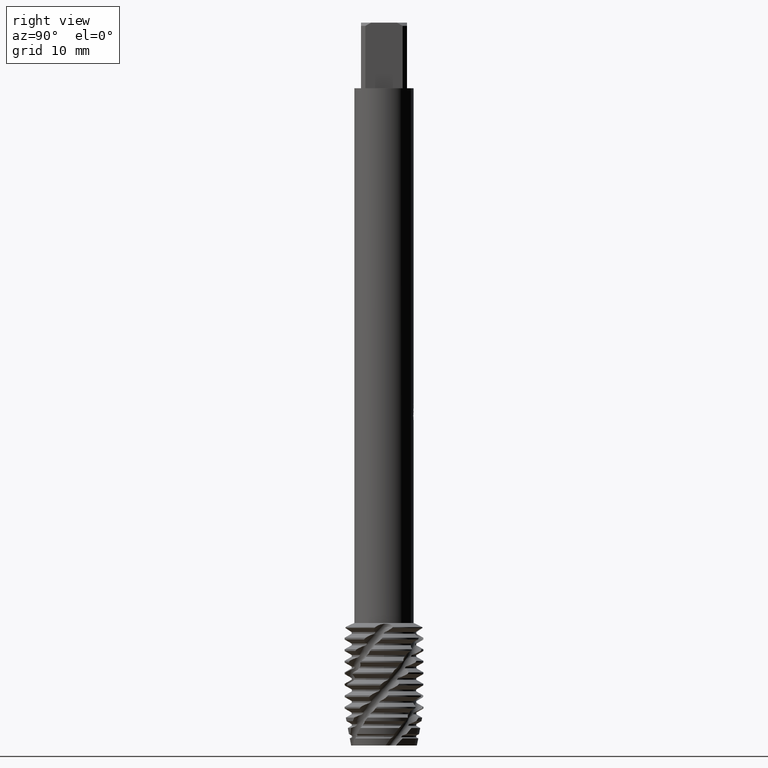
[diagram: clean part render]
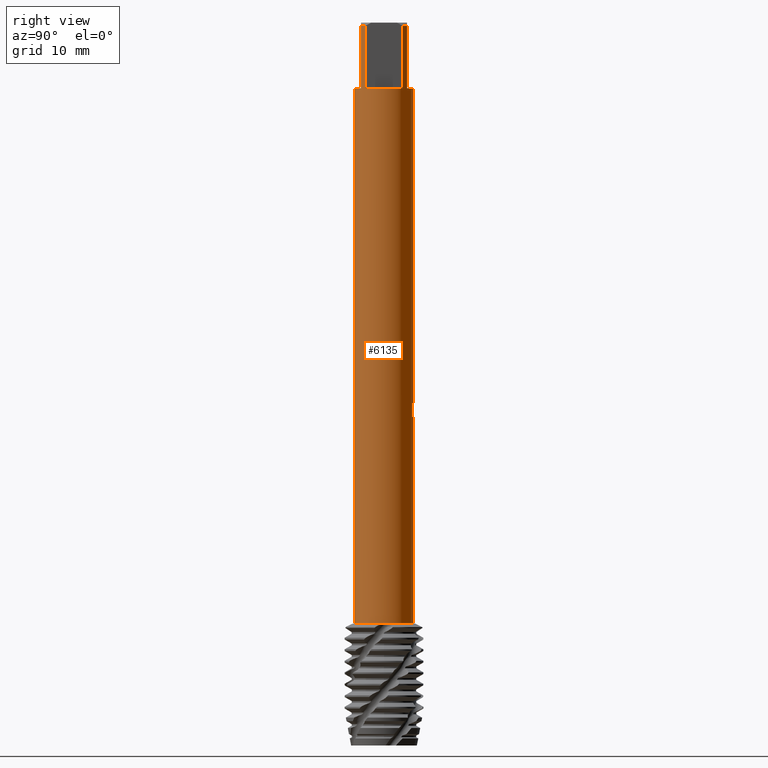
[diagram: same view with one face highlighted and labeled with its STEP entity id]
A machine part, right view. The second image highlights one B-rep face of the part: STEP entity #6135.
In plain terms, the highlighted cylindrical surface (edge-blend (fillet) strip) has radius 4.5 mm, axis along (-0, -0, 1).
Its self-contained STEP definition (entity closure, byte-faithful):
#2151=VERTEX_POINT('',#6357);
#2379=EDGE_CURVE('',#4699,#2591,#6610,.T.);
#2439=VERTEX_POINT('',#6676);
#2591=VERTEX_POINT('',#6840);
#2733=VERTEX_POINT('',#6996);
#2775=VERTEX_POINT('',#7040);
#2905=VERTEX_POINT('',#7178);
#2925=EDGE_CURVE('',#3673,#4673,#7199,.T.);
#3027=EDGE_CURVE('',#5667,#3673,#7308,.T.);
#3035=VERTEX_POINT('',#7316);
#3215=EDGE_CURVE('',#4673,#5623,#7515,.T.);
#3221=EDGE_CURVE('',#3825,#2439,#7521,.T.);
#3591=EDGE_CURVE('',#5341,#3875,#7917,.T.);
#3673=VERTEX_POINT('',#8007);
#3809=VERTEX_POINT('',#8159);
#3825=VERTEX_POINT('',#8175);
#3875=VERTEX_POINT('',#8230);
#3959=EDGE_CURVE('',#2733,#5743,#8324,.T.);
#4145=EDGE_CURVE('',#5259,#2151,#8522,.T.);
#4323=EDGE_CURVE('',#5623,#4775,#8720,.T.);
#4331=EDGE_CURVE('',#5259,#3825,#8728,.T.);
#4359=EDGE_CURVE('',#2439,#5519,#8758,.T.);
#4569=EDGE_CURVE('',#5743,#2905,#8991,.T.);
#4647=EDGE_CURVE('',#2151,#4699,#9081,.T.);
#4673=VERTEX_POINT('',#9107);
#4699=VERTEX_POINT('',#9135);
#4733=EDGE_CURVE('',#3875,#2591,#9175,.T.);
#4755=EDGE_CURVE('',#3035,#5341,#9200,.T.);
#4775=VERTEX_POINT('',#9221);
#4959=EDGE_CURVE('',#5519,#2733,#9417,.T.);
#5259=VERTEX_POINT('',#9736);
#5341=VERTEX_POINT('',#9829);
#5385=EDGE_CURVE('',#5667,#2775,#9877,.T.);
#5519=VERTEX_POINT('',#10022);
#5623=VERTEX_POINT('',#10135);
#5667=VERTEX_POINT('',#10183);
#5717=EDGE_CURVE('',#4775,#3809,#10237,.T.);
#5743=VERTEX_POINT('',#10266);
#6075=EDGE_CURVE('',#2905,#2775,#10622,.T.);
#6135=ADVANCED_FACE('',(#10688),#10689,.T.);
#6255=EDGE_CURVE('',#3809,#3035,#10820,.T.);
#6357=CARTESIAN_POINT('',(0.0,4.5,-91.3649147038914));
#6610=LINE('',#12368,#12369);
#6676=CARTESIAN_POINT('',(0.786204703583062,4.43078798455352,-58.9379038436482));
#6840=CARTESIAN_POINT('',(5.5107285922007E-016,-4.5,-10.0));
#6996=CARTESIAN_POINT('',(1.20348905863192,4.33608280430082,-59.8111491302932));
#7040=CARTESIAN_POINT('',(7.47027679573161E-015,4.5,-58.6709419305969));
#7178=CARTESIAN_POINT('',(0.719488553745929,4.44210943370699,-57.7500002491857));
#7199=LINE('',#14978,#14979);
#7308=CIRCLE('',#15609,4.5);
#7316=CARTESIAN_POINT('',(3.5,-2.82842712474619,-0.5));
#7515=CIRCLE('',#16501,4.5);
#7521=ELLIPSE('',#16516,13.715975580164,4.5);
#7917=LINE('',#17783,#17784);
#8007=CARTESIAN_POINT('',(2.82842712474619,3.5,-10.0));
#8159=CARTESIAN_POINT('',(3.5,-2.82842712474619,-10.0));
#8175=CARTESIAN_POINT('',(0.261092814332248,4.49241923047082,-60.4498496091205));
#8230=CARTESIAN_POINT('',(2.82842712474619,-3.5,-10.0));
#8324=LINE('',#20191,#20192);
#8522=LINE('',#20962,#20963);
#8720=LINE('',#22305,#22306);
#8728=B_SPLINE_CURVE_WITH_KNOTS('',3,(#22315,#22316,#22317,#22318,#22319,#22320,#22321,#22322,#22323,#22324,#22325,#22326,#22327,#22328),.UNSPECIFIED.,.F.,.F.,(4,2,2,2,2,2,4),(5.00928657264586,5.56602959440373,6.12289935657729,6.40133423766407,6.67976911875085,6.95779012540739,7.23581113206392),.UNSPECIFIED.);
#8758=LINE('',#22426,#22427);
#8991=B_SPLINE_CURVE_WITH_KNOTS('',3,(#23469,#23470,#23471,#23472,#23473,#23474),.UNSPECIFIED.,.F.,.F.,(4,2,4),(0.55661694981192,1.11323389962384,1.66927588158157),.UNSPECIFIED.);
#9081=CIRCLE('',#24166,4.5);
#9107=CARTESIAN_POINT('',(2.82842712474619,3.5,-0.5));
#9135=CARTESIAN_POINT('',(5.51072859220069E-016,-4.5,-91.3649147038914));
#9175=CIRCLE('',#24689,4.5);
#9200=CIRCLE('',#24848,4.5);
#9221=CARTESIAN_POINT('',(3.5,2.82842712474619,-10.0));
#9417=B_SPLINE_CURVE_WITH_KNOTS('',3,(#25865,#25866,#25867,#25868,#25869,#25870),.UNSPECIFIED.,.F.,.F.,(4,2,4),(7.23581044552088,7.79185240870885,8.34846933917832),.UNSPECIFIED.);
#9736=CARTESIAN_POINT('',(-3.31925953802787E-015,4.5,-60.477922824093));
#9829=CARTESIAN_POINT('',(2.82842712474619,-3.5,-0.5));
#9877=LINE('',#28264,#28265);
#10022=CARTESIAN_POINT('',(0.786204703583061,4.43078798455352,-60.2328616612378));
#10135=CARTESIAN_POINT('',(3.5,2.82842712474619,-0.5));
#10183=CARTESIAN_POINT('',(-5.5107285922007E-016,4.5,-10.0));
#10237=CIRCLE('',#29894,4.5);
#10266=CARTESIAN_POINT('',(1.20348905863192,4.33608280430082,-58.2135435928339));
#10622=B_SPLINE_CURVE_WITH_KNOTS('',3,(#31797,#31798,#31799,#31800,#31801,#31802,#31803,#31804,#31805,#31806,#31807,#31808,#31809,#31810,#31811,#31812,#31813,#31814,#31815,#31816,#31817,#31818,#31819,#31820,#31821,#31822,#31823),.UNSPECIFIED.,.F.,.F.,(4,2,3,2,2,2,2,2,2,2,2,2,4),(-0.488237494321567,-0.244118747160784,0.0,0.244118747160784,0.488237494321568,0.732868933443254,0.97750037256494,1.22127161368315,1.46504285480135,1.70906790328602,1.95309295177068,2.19711800025535,2.44114304874002),.UNSPECIFIED.);
#10688=FACE_OUTER_BOUND('',#31998,.T.);
#10689=CYLINDRICAL_SURFACE('',#31999,4.5);
#10820=LINE('',#32680,#32681);
#12368=CARTESIAN_POINT('',(5.5107285922007E-016,-4.5,-78.6824573519457));
#12369=VECTOR('',#33392,1.0);
#14978=CARTESIAN_POINT('',(2.82842712474619,3.5,-5.25));
#14979=VECTOR('',#33886,1.0);
#15609=AXIS2_PLACEMENT_3D('',#33990,#33991,#33992);
#16501=AXIS2_PLACEMENT_3D('',#34190,#34191,#34192);
#16516=AXIS2_PLACEMENT_3D('',#34193,#34194,#34195);
#17783=CARTESIAN_POINT('',(2.82842712474619,-3.5,-5.25));
#17784=VECTOR('',#34555,1.0);
#20191=CARTESIAN_POINT('',(1.20348905863192,4.33608280430082,-59.0123463615635));
#20192=VECTOR('',#35053,1.0);
#20962=CARTESIAN_POINT('',(-5.5107285922007E-016,4.5,-78.6824573519457));
#20963=VECTOR('',#35197,1.0);
#22305=CARTESIAN_POINT('',(3.5,2.82842712474619,-5.25));
#22306=VECTOR('',#35403,1.0);
#22315=CARTESIAN_POINT('',(-1.37898170158697,4.28350434418927,-59.5751271965754));
#22316=CARTESIAN_POINT('',(-1.30401050073994,4.30763968568169,-59.7554290227717));
#22317=CARTESIAN_POINT('',(-1.19150514881565,4.34143094124777,-59.9192705231025));
#22318=CARTESIAN_POINT('',(-0.932859747393677,4.40425792748471,-60.1780135031786));
#22319=CARTESIAN_POINT('',(-0.768955753958505,4.43754641363357,-60.290648069192));
#22320=CARTESIAN_POINT('',(-0.498353399802765,4.47324509387064,-60.4032253728295));
#22321=CARTESIAN_POINT('',(-0.404091648536853,4.48283151844287,-60.4317231620603));
#22322=CARTESIAN_POINT('',(-0.214084281205441,4.49591330028805,-60.4691882523958));
#22323=CARTESIAN_POINT('',(-0.118336086251352,4.4994011344625,-60.4781451001578));
#22324=CARTESIAN_POINT('',(0.0671462255047121,4.50045328753729,-60.4781451001578));
#22325=CARTESIAN_POINT('',(0.162791105789783,4.49805968638437,-60.4692143814867));
#22326=CARTESIAN_POINT('',(0.352656619267635,4.48716783676345,-60.4318200789286));
#22327=CARTESIAN_POINT('',(0.446879650707235,4.47867716616224,-60.4033664657591));
#22328=CARTESIAN_POINT('',(0.537063139356246,4.46783652166737,-60.3658822146561));
#22426=CARTESIAN_POINT('',(0.786204703583062,4.43078798455352,-59.585382752443));
#22427=VECTOR('',#35426,1.0);
#23469=CARTESIAN_POINT('',(1.32790171013553,4.29961359289636,-58.449499051033));
#23470=CARTESIAN_POINT('',(1.25288604636555,4.32278157191396,-58.2691154200329));
#23471=CARTESIAN_POINT('',(1.14027118351832,4.35516310459436,-58.1051449244708));
#23472=CARTESIAN_POINT('',(0.88138475897949,4.41483730983045,-57.8463526065749));
#23473=CARTESIAN_POINT('',(0.717429841534522,4.44615527664793,-57.7337793829887));
#23474=CARTESIAN_POINT('',(0.537062873222335,4.4678365536584,-57.6588108848587));
#24166=AXIS2_PLACEMENT_3D('',#35760,#35761,#35762);
#24689=AXIS2_PLACEMENT_3D('',#35851,#35852,#35853);
#24848=AXIS2_PLACEMENT_3D('',#35879,#35880,#35881);
#25865=CARTESIAN_POINT('',(0.537062893299679,4.46783655124497,-60.3658818237644));
#25866=CARTESIAN_POINT('',(0.717429855458743,4.44615527415191,-60.2909133281594));
#25867=CARTESIAN_POINT('',(0.881384767296869,4.41483730803448,-60.1783401083781));
#25868=CARTESIAN_POINT('',(1.14027118287006,4.35516310462244,-59.9195477992995));
#25869=CARTESIAN_POINT('',(1.25288604178808,4.32278157319009,-59.755577309398));
#25870=CARTESIAN_POINT('',(1.32790170293637,4.29961359511976,-59.5751936846334));
#28264=CARTESIAN_POINT('',(-5.5107285922007E-016,4.5,-78.6824573519457));
#28265=VECTOR('',#36487,1.0);
#29894=AXIS2_PLACEMENT_3D('',#36874,#36875,#36876);
#31797=CARTESIAN_POINT('',(0.598610493082049,4.46000734052894,-57.582236711173));
#31798=CARTESIAN_POINT('',(0.655861677259137,4.45232323667594,-57.6395499545912));
#31799=CARTESIAN_POINT('',(0.705567749493119,4.44446773270288,-57.7121492432381));
#31800=CARTESIAN_POINT('',(0.771571740116611,4.43348579996644,-57.8714202755976));
#31801=CARTESIAN_POINT('',(0.787860883069711,4.43049379064327,-57.9581048956078));
#31802=CARTESIAN_POINT('',(0.787860883069711,4.43049379064327,-58.0394778113281));
#31803=CARTESIAN_POINT('',(0.787860883069711,4.43049379064327,-58.1208507270484));
#31804=CARTESIAN_POINT('',(0.771571740116611,4.43348579996644,-58.2075353470586));
#31805=CARTESIAN_POINT('',(0.705567749493119,4.44446773270288,-58.3668063794181));
#31806=CARTESIAN_POINT('',(0.655861677259137,4.45232323667594,-58.439405668065));
#31807=CARTESIAN_POINT('',(0.541239071429477,4.4677075823407,-58.5541525227121));
#31808=CARTESIAN_POINT('',(0.468577077404002,4.47625259584298,-58.6039697560255));
#31809=CARTESIAN_POINT('',(0.309153440232775,4.49008083772597,-58.670130310445));
#31810=CARTESIAN_POINT('',(0.222377597844716,4.49524166173767,-58.6864649424972));
#31811=CARTESIAN_POINT('',(0.0596564980879214,4.5003381889972,-58.6864649424972));
#31812=CARTESIAN_POINT('',(-0.0269868018666341,4.5006247904204,-58.6702329320859));
#31813=CARTESIAN_POINT('',(-0.186338276307759,4.49684665499258,-58.6042445557697));
#31814=CARTESIAN_POINT('',(-0.259050734958625,4.49290602438602,-58.554491488258));
#31815=CARTESIAN_POINT('',(-0.373922504658752,4.48480776485445,-58.4396992737441));
#31816=CARTESIAN_POINT('',(-0.42374060501627,4.4801280654383,-58.3669685517597));
#31817=CARTESIAN_POINT('',(-0.489837971487068,4.47338376984478,-58.2075321781649));
#31818=CARTESIAN_POINT('',(-0.506113379268523,4.4714482270653,-58.1208194941563));
#31819=CARTESIAN_POINT('',(-0.506113379268523,4.4714482270653,-57.9581361284999));
#31820=CARTESIAN_POINT('',(-0.489837971487066,4.47338376984478,-57.8714234444913));
#31821=CARTESIAN_POINT('',(-0.423740605016268,4.4801280654383,-57.7119870708965));
#31822=CARTESIAN_POINT('',(-0.373922504658753,4.48480776485445,-57.6392563489121));
#31823=CARTESIAN_POINT('',(-0.316456735098646,4.4888590014402,-57.581830377642));
#31998=EDGE_LOOP('',(#37339,#37340,#37341,#37342,#37343,#37344,#37345,#37346,#37347,#37348,#37349,#37350,#37351,#37352,#37353,#37354,#37355,#37356,#37357,#37358));
#31999=AXIS2_PLACEMENT_3D('',#37359,#37360,#37361);
#32680=CARTESIAN_POINT('',(3.5,-2.82842712474619,-5.25));
#32681=VECTOR('',#37488,1.0);
#33392=DIRECTION('',(-0.0,-0.0,1.0));
#33886=DIRECTION('',(-0.0,-0.0,1.0));
#33990=CARTESIAN_POINT('',(0.0,0.0,-10.0));
#33991=DIRECTION('',(0.0,0.0,-1.0));
#33992=DIRECTION('',(0.0,1.0,0.0));
#34190=CARTESIAN_POINT('',(0.0,0.0,-0.5));
#34191=DIRECTION('',(0.0,0.0,-1.0));
#34192=DIRECTION('',(0.0,1.0,0.0));
#34193=CARTESIAN_POINT('',(0.0,0.0,-61.2016097255942));
#34194=DIRECTION('',(0.944648353914092,0.0,-0.328084573619969));
#34195=DIRECTION('',(0.328084573619968,-0.0,0.944648353914092));
#34555=DIRECTION('',(0.0,0.0,-1.0));
#35053=DIRECTION('',(-0.0,-0.0,1.0));
#35197=DIRECTION('',(0.0,0.0,-1.0));
#35403=DIRECTION('',(0.0,0.0,-1.0));
#35426=DIRECTION('',(0.0,0.0,-1.0));
#35760=CARTESIAN_POINT('',(0.0,0.0,-91.3649147038914));
#35761=DIRECTION('',(0.0,0.0,-1.0));
#35762=DIRECTION('',(0.0,1.0,0.0));
#35851=CARTESIAN_POINT('',(0.0,0.0,-10.0));
#35852=DIRECTION('',(0.0,0.0,-1.0));
#35853=DIRECTION('',(0.0,1.0,0.0));
#35879=CARTESIAN_POINT('',(0.0,0.0,-0.5));
#35880=DIRECTION('',(0.0,0.0,-1.0));
#35881=DIRECTION('',(0.0,1.0,0.0));
#36487=DIRECTION('',(0.0,0.0,-1.0));
#36874=CARTESIAN_POINT('',(0.0,0.0,-10.0));
#36875=DIRECTION('',(0.0,0.0,-1.0));
#36876=DIRECTION('',(0.0,1.0,0.0));
#37339=ORIENTED_EDGE('',*,*,#5385,.F.);
#37340=ORIENTED_EDGE('',*,*,#3027,.T.);
#37341=ORIENTED_EDGE('',*,*,#2925,.T.);
#37342=ORIENTED_EDGE('',*,*,#3215,.T.);
#37343=ORIENTED_EDGE('',*,*,#4323,.T.);
#37344=ORIENTED_EDGE('',*,*,#5717,.T.);
#37345=ORIENTED_EDGE('',*,*,#6255,.T.);
#37346=ORIENTED_EDGE('',*,*,#4755,.T.);
#37347=ORIENTED_EDGE('',*,*,#3591,.T.);
#37348=ORIENTED_EDGE('',*,*,#4733,.T.);
#37349=ORIENTED_EDGE('',*,*,#2379,.F.);
#37350=ORIENTED_EDGE('',*,*,#4647,.F.);
#37351=ORIENTED_EDGE('',*,*,#4145,.F.);
#37352=ORIENTED_EDGE('',*,*,#4331,.T.);
#37353=ORIENTED_EDGE('',*,*,#3221,.T.);
#37354=ORIENTED_EDGE('',*,*,#4359,.T.);
#37355=ORIENTED_EDGE('',*,*,#4959,.T.);
#37356=ORIENTED_EDGE('',*,*,#3959,.T.);
#37357=ORIENTED_EDGE('',*,*,#4569,.T.);
#37358=ORIENTED_EDGE('',*,*,#6075,.T.);
#37359=CARTESIAN_POINT('',(0.0,0.0,-78.6824573519457));
#37360=DIRECTION('',(-0.0,-0.0,1.0));
#37361=DIRECTION('',(0.0,1.0,0.0));
#37488=DIRECTION('',(-0.0,-0.0,1.0));